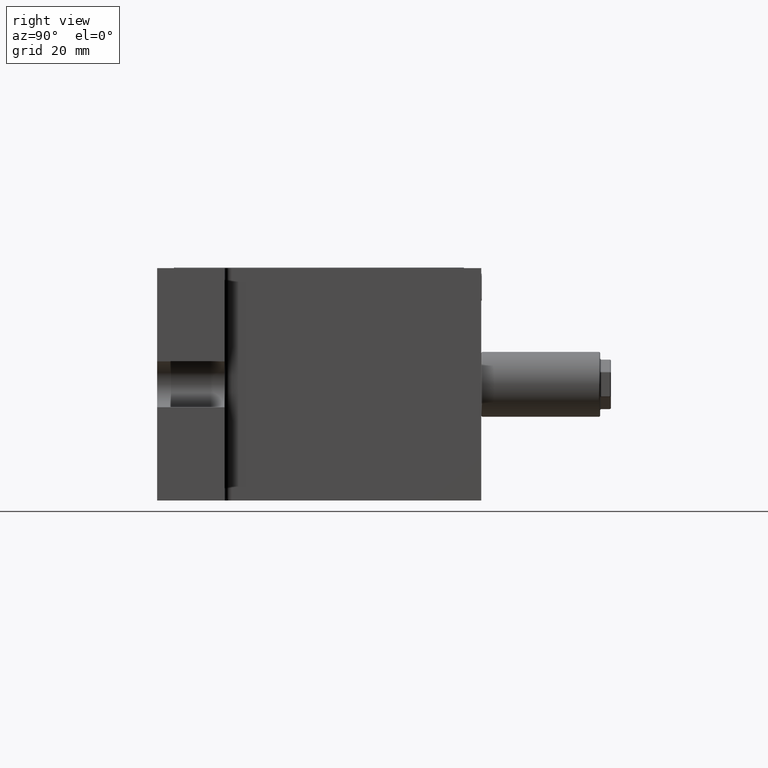
[diagram: clean part render]
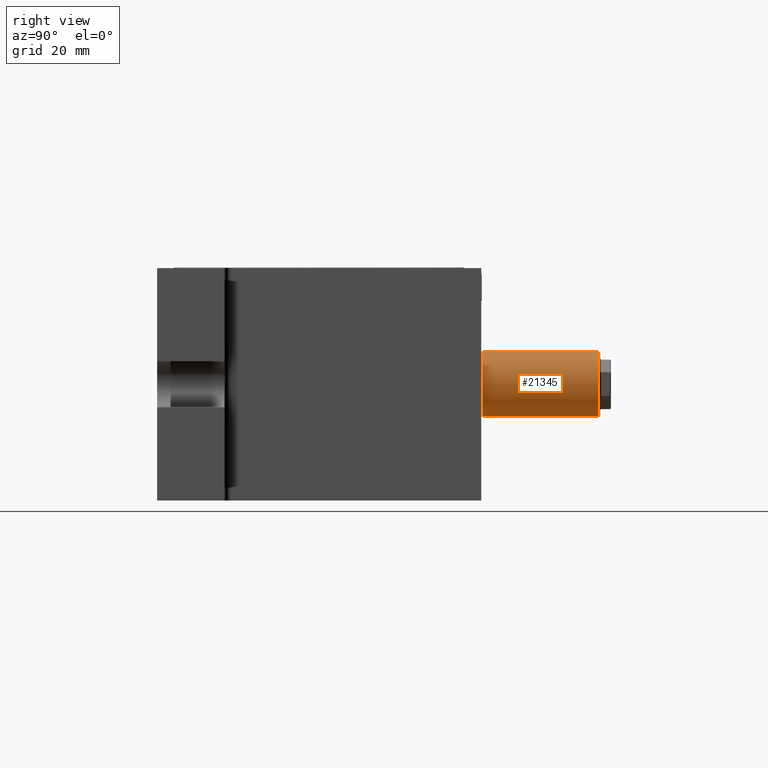
[diagram: same view with one face highlighted and labeled with its STEP entity id]
A machine part, right view. The second image highlights one B-rep face of the part: STEP entity #21345.
In plain terms, the highlighted cylindrical surface (edge-blend (fillet) strip) has radius 12 mm, axis along (0, -1, 0).
Its self-contained STEP definition (entity closure, byte-faithful):
#607 = CARTESIAN_POINT ( 'NONE',  ( 40.00000000000000000, 70.00000000000000000, -12.00000000000000000 ) ) ;
#852 = CARTESIAN_POINT ( 'NONE',  ( 40.00000000000000000, 104.0000000000000000, 12.00000000000000000 ) ) ;
#921 = CARTESIAN_POINT ( 'NONE',  ( 40.00000000000000000, 94.00000000000000000, 12.00000000000000000 ) ) ;
#991 = VECTOR ( 'NONE', #16666, 1000.000000000000000 ) ;
#994 = VERTEX_POINT ( 'NONE', #13025 ) ;
#1073 = CARTESIAN_POINT ( 'NONE',  ( 40.00000000000000000, 86.00000000000000000, -12.00000000000000000 ) ) ;
#1290 = VECTOR ( 'NONE', #21351, 1000.000000000000000 ) ;
#1449 = EDGE_CURVE ( 'NONE', #18604, #15586, #21281, .T. ) ;
#1459 = VERTEX_POINT ( 'NONE', #14971 ) ;
#1478 = ORIENTED_EDGE ( 'NONE', *, *, #1449, .F. ) ;
#1496 = ORIENTED_EDGE ( 'NONE', *, *, #5713, .F. ) ;
#1588 = DIRECTION ( 'NONE',  ( 0.0000000000000000000, -1.000000000000000000, 0.0000000000000000000 ) ) ;
#1644 = DIRECTION ( 'NONE',  ( 0.0000000000000000000, -1.000000000000000000, 0.0000000000000000000 ) ) ;
#1764 = AXIS2_PLACEMENT_3D ( 'NONE', #12835, #12919, #2730 ) ;
#1863 = ORIENTED_EDGE ( 'NONE', *, *, #10735, .F. ) ;
#1956 = VERTEX_POINT ( 'NONE', #21063 ) ;
#2467 = VECTOR ( 'NONE', #1588, 1000.000000000000000 ) ;
#2490 = LINE ( 'NONE', #16658, #9944 ) ;
#2532 = VECTOR ( 'NONE', #16055, 1000.000000000000000 ) ;
#2601 = DIRECTION ( 'NONE',  ( 0.0000000000000000000, -1.000000000000000000, 0.0000000000000000000 ) ) ;
#2611 = CARTESIAN_POINT ( 'NONE',  ( 40.00000000000000000, 104.0000000000000000, -12.00000000000000000 ) ) ;
#2730 = DIRECTION ( 'NONE',  ( 0.0000000000000000000, 0.0000000000000000000, -1.000000000000000000 ) ) ;
#2736 = ORIENTED_EDGE ( 'NONE', *, *, #2961, .F. ) ;
#2961 = EDGE_CURVE ( 'NONE', #9221, #8881, #8953, .T. ) ;
#3003 = LINE ( 'NONE', #11848, #2467 ) ;
#3282 = LINE ( 'NONE', #9177, #19837 ) ;
#3358 = LINE ( 'NONE', #12604, #2532 ) ;
#3447 = CARTESIAN_POINT ( 'NONE',  ( 40.00000000000000000, 76.00000000000000000, -12.00000000000000000 ) ) ;
#3458 = DIRECTION ( 'NONE',  ( 0.0000000000000000000, -1.000000000000000000, 0.0000000000000000000 ) ) ;
#3866 = CARTESIAN_POINT ( 'NONE',  ( 40.00000000000000000, 104.0000000000000000, 12.00000000000000000 ) ) ;
#3982 = DIRECTION ( 'NONE',  ( 0.0000000000000000000, -1.000000000000000000, 0.0000000000000000000 ) ) ;
#4011 = VECTOR ( 'NONE', #16882, 1000.000000000000000 ) ;
#4304 = DIRECTION ( 'NONE',  ( 0.0000000000000000000, -1.000000000000000000, 0.0000000000000000000 ) ) ;
#4436 = EDGE_CURVE ( 'NONE', #12911, #13669, #16080, .T. ) ;
#4627 = ORIENTED_EDGE ( 'NONE', *, *, #20992, .F. ) ;
#4815 = CARTESIAN_POINT ( 'NONE',  ( 40.00000000000000000, 70.00000000000000000, 12.00000000000000000 ) ) ;
#4976 = VERTEX_POINT ( 'NONE', #4815 ) ;
#5056 = ORIENTED_EDGE ( 'NONE', *, *, #21957, .T. ) ;
#5294 = VERTEX_POINT ( 'NONE', #1073 ) ;
#5433 = EDGE_CURVE ( 'NONE', #8546, #13407, #2490, .T. ) ;
#5458 = CARTESIAN_POINT ( 'NONE',  ( 40.00000000000000000, 60.50000000000000000, 12.00000000000000000 ) ) ;
#5585 = CYLINDRICAL_SURFACE ( 'NONE', #17606, 12.00000000000000000 ) ;
#5713 = EDGE_CURVE ( 'NONE', #5294, #15953, #3003, .T. ) ;
#5954 = ORIENTED_EDGE ( 'NONE', *, *, #14668, .F. ) ;
#6044 = ORIENTED_EDGE ( 'NONE', *, *, #16911, .T. ) ;
#6053 = EDGE_CURVE ( 'NONE', #994, #9724, #17662, .T. ) ;
#6220 = ORIENTED_EDGE ( 'NONE', *, *, #20703, .F. ) ;
#6265 = VECTOR ( 'NONE', #16443, 1000.000000000000000 ) ;
#6374 = CARTESIAN_POINT ( 'NONE',  ( 40.00000000000000000, 92.00000000000000000, 12.00000000000000000 ) ) ;
#6580 = CARTESIAN_POINT ( 'NONE',  ( 40.00000000000000000, 68.00000000000000000, -12.00000000000000000 ) ) ;
#6987 = CARTESIAN_POINT ( 'NONE',  ( 40.00000000000000000, 104.0000000000000000, -12.00000000000000000 ) ) ;
#7136 = CARTESIAN_POINT ( 'NONE',  ( 40.00000000000000000, 60.50000000000000000, 0.0000000000000000000 ) ) ;
#7264 = ORIENTED_EDGE ( 'NONE', *, *, #19103, .T. ) ;
#7344 = LINE ( 'NONE', #852, #1290 ) ;
#7358 = VERTEX_POINT ( 'NONE', #6580 ) ;
#7386 = EDGE_CURVE ( 'NONE', #7358, #15586, #11709, .T. ) ;
#7462 = DIRECTION ( 'NONE',  ( -0.0000000000000000000, 1.000000000000000000, -0.0000000000000000000 ) ) ;
#7529 = VECTOR ( 'NONE', #4304, 1000.000000000000000 ) ;
#7586 = CARTESIAN_POINT ( 'NONE',  ( 40.00000000000000000, 60.50000000000000000, -12.00000000000000000 ) ) ;
#7784 = CARTESIAN_POINT ( 'NONE',  ( 40.00000000000000000, 78.00000000000000000, 12.00000000000000000 ) ) ;
#8194 = ORIENTED_EDGE ( 'NONE', *, *, #16784, .T. ) ;
#8208 = VERTEX_POINT ( 'NONE', #21905 ) ;
#8546 = VERTEX_POINT ( 'NONE', #13582 ) ;
#8778 = ORIENTED_EDGE ( 'NONE', *, *, #6053, .T. ) ;
#8801 = CARTESIAN_POINT ( 'NONE',  ( 40.00000000000000000, 104.0000000000000000, 0.0000000000000000000 ) ) ;
#8881 = VERTEX_POINT ( 'NONE', #921 ) ;
#8953 = LINE ( 'NONE', #12828, #6265 ) ;
#9065 = DIRECTION ( 'NONE',  ( 0.0000000000000000000, -1.000000000000000000, 0.0000000000000000000 ) ) ;
#9177 = CARTESIAN_POINT ( 'NONE',  ( 40.00000000000000000, 104.0000000000000000, 12.00000000000000000 ) ) ;
#9221 = VERTEX_POINT ( 'NONE', #6374 ) ;
#9255 = CARTESIAN_POINT ( 'NONE',  ( 40.00000000000000000, 92.00000000000000000, -12.00000000000000000 ) ) ;
#9269 = AXIS2_PLACEMENT_3D ( 'NONE', #7136, #15296, #13647 ) ;
#9305 = CARTESIAN_POINT ( 'NONE',  ( 40.00000000000000000, 104.0000000000000000, 12.00000000000000000 ) ) ;
#9329 = VECTOR ( 'NONE', #7462, 1000.000000000000000 ) ;
#9628 = ORIENTED_EDGE ( 'NONE', *, *, #13368, .F. ) ;
#9724 = VERTEX_POINT ( 'NONE', #5458 ) ;
#9871 = CARTESIAN_POINT ( 'NONE',  ( 40.00000000000000000, 104.0000000000000000, 12.00000000000000000 ) ) ;
#9944 = VECTOR ( 'NONE', #3458, 1000.000000000000000 ) ;
#10017 = EDGE_CURVE ( 'NONE', #1956, #18604, #19264, .T. ) ;
#10043 = CIRCLE ( 'NONE', #9269, 12.00000000000000000 ) ;
#10096 = EDGE_LOOP ( 'NONE', ( #6220, #5056, #7264, #2736, #20403, #20764, #11493, #5954, #17185, #6044, #8778, #8194, #9628, #17591, #1478, #21580, #1863, #1496, #4627, #12299 ) ) ;
#10735 = EDGE_CURVE ( 'NONE', #15953, #1956, #13035, .T. ) ;
#11309 = CARTESIAN_POINT ( 'NONE',  ( 40.00000000000000000, 84.00000000000000000, -12.00000000000000000 ) ) ;
#11311 = CARTESIAN_POINT ( 'NONE',  ( 40.00000000000000000, 94.00000000000000000, -12.00000000000000000 ) ) ;
#11403 = CARTESIAN_POINT ( 'NONE',  ( 40.00000000000000000, 104.0000000000000000, 12.00000000000000000 ) ) ;
#11493 = ORIENTED_EDGE ( 'NONE', *, *, #5433, .T. ) ;
#11657 = CARTESIAN_POINT ( 'NONE',  ( 40.00000000000000000, 104.0000000000000000, -12.00000000000000000 ) ) ;
#11709 = LINE ( 'NONE', #21115, #9329 ) ;
#11833 = CARTESIAN_POINT ( 'NONE',  ( 40.00000000000000000, 104.0000000000000000, -12.00000000000000000 ) ) ;
#11848 = CARTESIAN_POINT ( 'NONE',  ( 40.00000000000000000, 104.0000000000000000, -12.00000000000000000 ) ) ;
#12008 = VECTOR ( 'NONE', #12712, 1000.000000000000000 ) ;
#12023 = VECTOR ( 'NONE', #2601, 1000.000000000000000 ) ;
#12299 = ORIENTED_EDGE ( 'NONE', *, *, #4436, .F. ) ;
#12436 = CIRCLE ( 'NONE', #1764, 12.00000000000000000 ) ;
#12604 = CARTESIAN_POINT ( 'NONE',  ( 40.00000000000000000, 104.0000000000000000, -12.00000000000000000 ) ) ;
#12712 = DIRECTION ( 'NONE',  ( 0.0000000000000000000, -1.000000000000000000, 0.0000000000000000000 ) ) ;
#12755 = VECTOR ( 'NONE', #19867, 1000.000000000000000 ) ;
#12828 = CARTESIAN_POINT ( 'NONE',  ( 40.00000000000000000, 104.0000000000000000, 12.00000000000000000 ) ) ;
#12835 = CARTESIAN_POINT ( 'NONE',  ( 40.00000000000000000, 103.5000000000000000, 0.0000000000000000000 ) ) ;
#12911 = VERTEX_POINT ( 'NONE', #11311 ) ;
#12919 = DIRECTION ( 'NONE',  ( -0.0000000000000000000, -1.000000000000000000, -0.0000000000000000000 ) ) ;
#13025 = CARTESIAN_POINT ( 'NONE',  ( 40.00000000000000000, 68.00000000000000000, 12.00000000000000000 ) ) ;
#13035 = LINE ( 'NONE', #2611, #17321 ) ;
#13087 = DIRECTION ( 'NONE',  ( 0.0000000000000000000, -1.000000000000000000, 0.0000000000000000000 ) ) ;
#13145 = VECTOR ( 'NONE', #9065, 1000.000000000000000 ) ;
#13284 = FACE_OUTER_BOUND ( 'NONE', #10096, .T. ) ;
#13368 = EDGE_CURVE ( 'NONE', #7358, #21370, #3358, .T. ) ;
#13377 = LINE ( 'NONE', #3866, #7529 ) ;
#13407 = VERTEX_POINT ( 'NONE', #7784 ) ;
#13582 = CARTESIAN_POINT ( 'NONE',  ( 40.00000000000000000, 84.00000000000000000, 12.00000000000000000 ) ) ;
#13647 = DIRECTION ( 'NONE',  ( 0.0000000000000000000, 0.0000000000000000000, -1.000000000000000000 ) ) ;
#13669 = VERTEX_POINT ( 'NONE', #9255 ) ;
#13901 = DIRECTION ( 'NONE',  ( 0.0000000000000000000, 0.0000000000000000000, 1.000000000000000000 ) ) ;
#14668 = EDGE_CURVE ( 'NONE', #20002, #13407, #3282, .T. ) ;
#14971 = CARTESIAN_POINT ( 'NONE',  ( 40.00000000000000000, 103.5000000000000000, -12.00000000000000000 ) ) ;
#15296 = DIRECTION ( 'NONE',  ( 0.0000000000000000000, 1.000000000000000000, 0.0000000000000000000 ) ) ;
#15368 = LINE ( 'NONE', #15672, #21792 ) ;
#15586 = VERTEX_POINT ( 'NONE', #607 ) ;
#15672 = CARTESIAN_POINT ( 'NONE',  ( 40.00000000000000000, 104.0000000000000000, 12.00000000000000000 ) ) ;
#15692 = LINE ( 'NONE', #18160, #12755 ) ;
#15953 = VERTEX_POINT ( 'NONE', #11309 ) ;
#16055 = DIRECTION ( 'NONE',  ( 0.0000000000000000000, -1.000000000000000000, 0.0000000000000000000 ) ) ;
#16080 = LINE ( 'NONE', #6987, #13145 ) ;
#16240 = EDGE_CURVE ( 'NONE', #9221, #8208, #7344, .T. ) ;
#16443 = DIRECTION ( 'NONE',  ( -0.0000000000000000000, 1.000000000000000000, -0.0000000000000000000 ) ) ;
#16577 = LINE ( 'NONE', #9305, #12008 ) ;
#16658 = CARTESIAN_POINT ( 'NONE',  ( 40.00000000000000000, 104.0000000000000000, 12.00000000000000000 ) ) ;
#16666 = DIRECTION ( 'NONE',  ( -0.0000000000000000000, 1.000000000000000000, -0.0000000000000000000 ) ) ;
#16784 = EDGE_CURVE ( 'NONE', #9724, #21370, #10043, .T. ) ;
#16882 = DIRECTION ( 'NONE',  ( 0.0000000000000000000, -1.000000000000000000, 0.0000000000000000000 ) ) ;
#16911 = EDGE_CURVE ( 'NONE', #4976, #994, #15368, .T. ) ;
#17185 = ORIENTED_EDGE ( 'NONE', *, *, #19895, .T. ) ;
#17292 = DIRECTION ( 'NONE',  ( 0.0000000000000000000, -1.000000000000000000, 0.0000000000000000000 ) ) ;
#17321 = VECTOR ( 'NONE', #21467, 1000.000000000000000 ) ;
#17441 = VERTEX_POINT ( 'NONE', #21695 ) ;
#17591 = ORIENTED_EDGE ( 'NONE', *, *, #7386, .T. ) ;
#17606 = AXIS2_PLACEMENT_3D ( 'NONE', #8801, #17292, #13901 ) ;
#17662 = LINE ( 'NONE', #11403, #12023 ) ;
#18060 = CARTESIAN_POINT ( 'NONE',  ( 40.00000000000000000, 76.00000000000000000, 12.00000000000000000 ) ) ;
#18160 = CARTESIAN_POINT ( 'NONE',  ( 40.00000000000000000, 104.0000000000000000, -12.00000000000000000 ) ) ;
#18604 = VERTEX_POINT ( 'NONE', #3447 ) ;
#18900 = LINE ( 'NONE', #9871, #991 ) ;
#19103 = EDGE_CURVE ( 'NONE', #17441, #8881, #13377, .T. ) ;
#19264 = LINE ( 'NONE', #19638, #20866 ) ;
#19572 = DIRECTION ( 'NONE',  ( -0.0000000000000000000, 1.000000000000000000, -0.0000000000000000000 ) ) ;
#19638 = CARTESIAN_POINT ( 'NONE',  ( 40.00000000000000000, 104.0000000000000000, -12.00000000000000000 ) ) ;
#19837 = VECTOR ( 'NONE', #19572, 1000.000000000000000 ) ;
#19867 = DIRECTION ( 'NONE',  ( 0.0000000000000000000, -1.000000000000000000, 0.0000000000000000000 ) ) ;
#19895 = EDGE_CURVE ( 'NONE', #20002, #4976, #16577, .T. ) ;
#20002 = VERTEX_POINT ( 'NONE', #18060 ) ;
#20403 = ORIENTED_EDGE ( 'NONE', *, *, #16240, .T. ) ;
#20703 = EDGE_CURVE ( 'NONE', #1459, #12911, #20850, .T. ) ;
#20764 = ORIENTED_EDGE ( 'NONE', *, *, #22027, .F. ) ;
#20850 = LINE ( 'NONE', #11657, #4011 ) ;
#20866 = VECTOR ( 'NONE', #13087, 1000.000000000000000 ) ;
#20992 = EDGE_CURVE ( 'NONE', #13669, #5294, #15692, .T. ) ;
#21063 = CARTESIAN_POINT ( 'NONE',  ( 40.00000000000000000, 78.00000000000000000, -12.00000000000000000 ) ) ;
#21115 = CARTESIAN_POINT ( 'NONE',  ( 40.00000000000000000, 104.0000000000000000, -12.00000000000000000 ) ) ;
#21281 = LINE ( 'NONE', #11833, #21806 ) ;
#21345 = ADVANCED_FACE ( 'NONE', ( #13284 ), #5585, .T. ) ;
#21351 = DIRECTION ( 'NONE',  ( 0.0000000000000000000, -1.000000000000000000, 0.0000000000000000000 ) ) ;
#21370 = VERTEX_POINT ( 'NONE', #7586 ) ;
#21467 = DIRECTION ( 'NONE',  ( 0.0000000000000000000, -1.000000000000000000, 0.0000000000000000000 ) ) ;
#21580 = ORIENTED_EDGE ( 'NONE', *, *, #10017, .F. ) ;
#21695 = CARTESIAN_POINT ( 'NONE',  ( 40.00000000000000000, 103.5000000000000000, 12.00000000000000000 ) ) ;
#21792 = VECTOR ( 'NONE', #3982, 1000.000000000000000 ) ;
#21806 = VECTOR ( 'NONE', #1644, 1000.000000000000000 ) ;
#21905 = CARTESIAN_POINT ( 'NONE',  ( 40.00000000000000000, 86.00000000000000000, 12.00000000000000000 ) ) ;
#21957 = EDGE_CURVE ( 'NONE', #1459, #17441, #12436, .T. ) ;
#22027 = EDGE_CURVE ( 'NONE', #8546, #8208, #18900, .T. ) ;